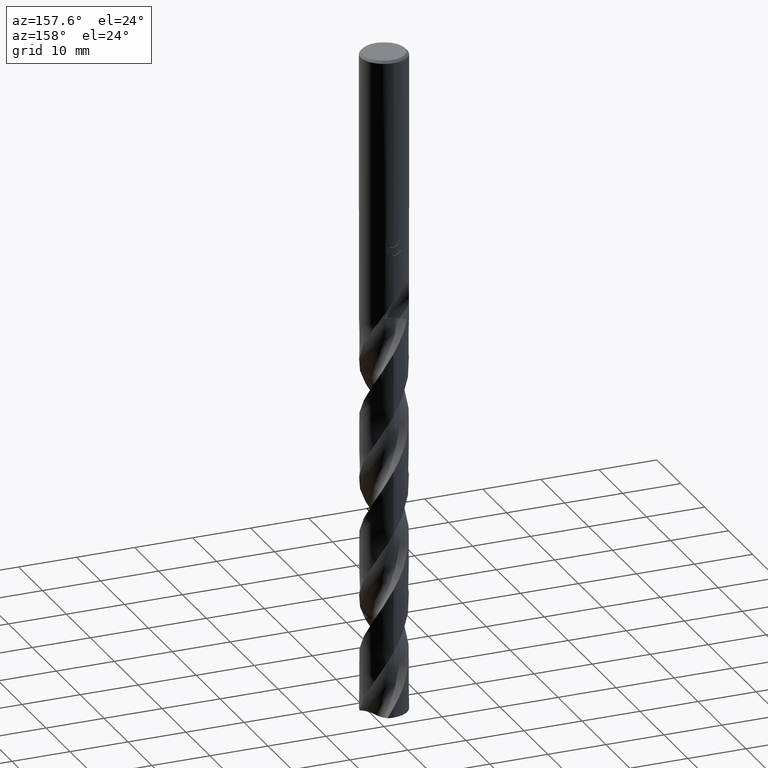
[diagram: clean part render]
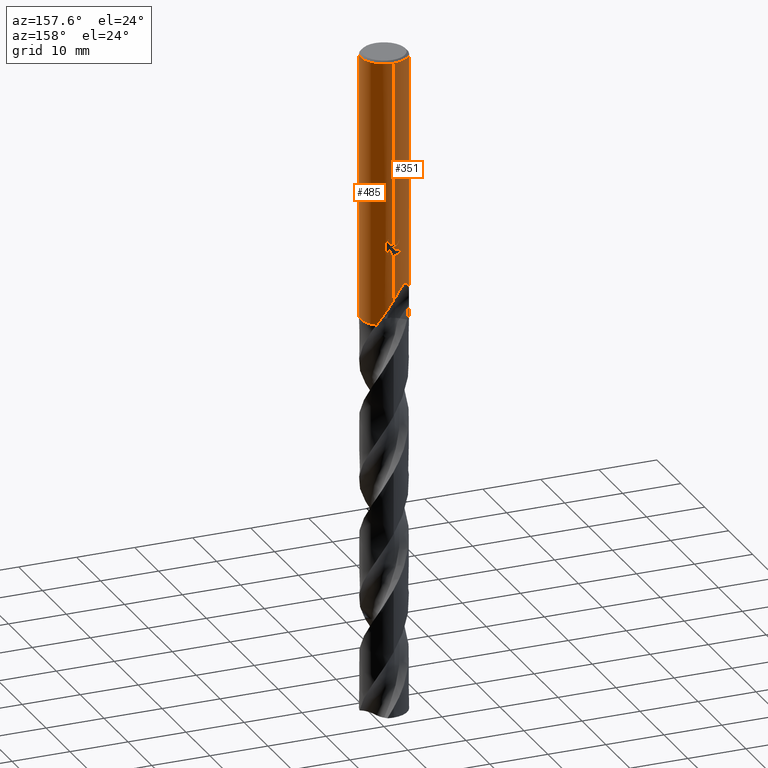
[diagram: same view with one multi-face feature highlighted, each face labeled with its STEP entity id]
A machine part, auxiliary view. The highlighted faces form ONE feature: a constant-radius fillet chain: 2 tangent blend faces with common blend radius 4 mm. The faces share edges in the B-rep.
Their STEP definitions:
[1] entity #485 (Cylinder):
#295=EDGE_CURVE('',#539,#717,#796,.T.);
#339=EDGE_CURVE('',#527,#715,#847,.T.);
#343=EDGE_CURVE('',#661,#387,#851,.T.);
#353=VERTEX_POINT('',#862);
#361=EDGE_CURVE('',#633,#677,#871,.T.);
#383=EDGE_CURVE('',#527,#445,#896,.T.);
#387=VERTEX_POINT('',#901);
#445=VERTEX_POINT('',#962);
#479=VERTEX_POINT('',#999);
#485=ADVANCED_FACE('',(#1005),#1006,.T.);
#507=EDGE_CURVE('',#479,#445,#1031,.T.);
#519=EDGE_CURVE('',#353,#573,#1046,.T.);
#527=VERTEX_POINT('',#1054);
#539=VERTEX_POINT('',#1067);
#551=VERTEX_POINT('',#1079);
#571=VERTEX_POINT('',#1102);
#573=VERTEX_POINT('',#1104);
#603=EDGE_CURVE('',#573,#661,#1137,.T.);
#633=VERTEX_POINT('',#1168);
#647=EDGE_CURVE('',#677,#679,#1183,.T.);
#649=EDGE_CURVE('',#539,#479,#1185,.T.);
#661=VERTEX_POINT('',#1197);
#669=EDGE_CURVE('',#387,#551,#1205,.T.);
#677=VERTEX_POINT('',#1214);
#679=VERTEX_POINT('',#1216);
#699=EDGE_CURVE('',#571,#717,#1238,.T.);
#715=VERTEX_POINT('',#1255);
#717=VERTEX_POINT('',#1257);
#723=EDGE_CURVE('',#571,#551,#1263,.T.);
#727=EDGE_CURVE('',#679,#353,#1268,.T.);
#729=EDGE_CURVE('',#633,#715,#1270,.T.);
#796=LINE('',#1360,#1361);
#847=B_SPLINE_CURVE_WITH_KNOTS('',3,(#2258,#2259,#2260,#2261,#2262,#2263,#2264,#2265,#2266,#2267,#2268,#2269,#2270,#2271,#2272,#2273,#2274,#2275,#2276,#2277,#2278,#2279,#2280,#2281,#2282,#2283,#2284,#2285,#2286,#2287),.UNSPECIFIED.,.F.,.F.,(4,2,2,2,2,2,2,2,2,2,2,2,2,2,4),(0.0,1.95613608925369,3.02588581458986,3.99535416475689,5.12196274412565,6.47500592879971,7.64546164151396,8.17671448888855,8.56504053255071,8.93254009064773,9.39877955356452,10.0809445060621,11.0506956007688,11.6849835291969,12.351566143193),.UNSPECIFIED.);
#851=B_SPLINE_CURVE_WITH_KNOTS('',3,(#2294,#2295,#2296,#2297,#2298,#2299,#2300,#2301,#2302,#2303),.UNSPECIFIED.,.F.,.F.,(4,2,2,2,4),(0.621618550720989,0.932427826081483,1.24323710144198,1.55341597198189,1.8635948425218),.UNSPECIFIED.);
#862=CARTESIAN_POINT('',(0.873560781758956,3.90344611344549,-33.7587351791531));
#871=B_SPLINE_CURVE_WITH_KNOTS('',3,(#3437,#3438,#3439,#3440,#3441,#3442,#3443,#3444,#3445,#3446,#3447,#3448,#3449,#3450,#3451,#3452),.UNSPECIFIED.,.F.,.F.,(4,2,2,2,2,2,2,4),(5.59330412183837,6.21519943861119,6.52611580040833,6.83703216220547,7.14794852400261,7.45886488579976,7.76904377517712,8.07922266455448),.UNSPECIFIED.);
#896=CIRCLE('',#3537,4.0);
#901=CARTESIAN_POINT('',(0.799431726384364,3.91929954390451,-31.000000276873));
#962=CARTESIAN_POINT('',(2.78162917950069,-2.87446327298686,-46.048));
#999=CARTESIAN_POINT('',(3.25456865325919,-2.32546401417495,-43.862679091506));
#1005=FACE_OUTER_BOUND('',#4989,.T.);
#1006=CYLINDRICAL_SURFACE('',#4990,4.0);
#1031=B_SPLINE_CURVE_WITH_KNOTS('',3,(#5371,#5372,#5373,#5374),.UNSPECIFIED.,.F.,.F.,(4,4),(0.0,2.29361829354824),.UNSPECIFIED.);
#1046=B_SPLINE_CURVE_WITH_KNOTS('',3,(#5393,#5394,#5395,#5396,#5397,#5398,#5399,#5400,#5401,#5402),.UNSPECIFIED.,.F.,.F.,(4,2,2,2,4),(8.07922159159579,8.38940045176896,8.69957931194214,9.01038857642139,9.32119784090064),.UNSPECIFIED.);
#1054=CARTESIAN_POINT('',(2.54648688111474,3.08470493958669,-46.048));
#1067=CARTESIAN_POINT('',(1.25035604699869E-012,-4.0,-41.801088623794));
#1079=CARTESIAN_POINT('',(0.0,4.0,-32.0232688117743));
#1102=CARTESIAN_POINT('',(0.0,4.0,-0.399999999999999));
#1104=CARTESIAN_POINT('',(1.33721006514658,3.76986329217263,-33.2901657003257));
#1137=LINE('',#6546,#6547);
#1168=CARTESIAN_POINT('',(-6.37761657961682E-016,4.0,-34.0310253601033));
#1183=ELLIPSE('',#7902,12.1919782934791,4.0);
#1185=B_SPLINE_CURVE_WITH_KNOTS('',3,(#7905,#7906,#7907,#7908,#7909,#7910,#7911,#7912,#7913,#7914,#7915,#7916,#7917,#7918,#7919,#7920,#7921,#7922,#7923,#7924,#7925,#7926,#7927,#7928,#7929,#7930,#7931,#7932,#7933,#7934),.UNSPECIFIED.,.F.,.F.,(4,2,2,2,2,2,2,2,2,2,2,2,2,2,4),(0.0,1.95613608925368,3.02588581458993,3.99535416475708,5.12196274412574,6.47500592879952,7.64546164151366,8.176714488888,8.56504053254987,8.93254009064667,9.39877955356351,10.0809445060602,11.0506956007644,11.6849835291912,12.351566143186),.UNSPECIFIED.);
#1197=CARTESIAN_POINT('',(1.33721006514658,3.76986329217263,-31.5150484364821));
#1205=B_SPLINE_CURVE_WITH_KNOTS('',3,(#7958,#7959,#7960,#7961,#7962,#7963,#7964,#7965,#7966,#7967,#7968,#7969,#7970,#7971,#7972,#7973,#7974,#7975,#7976,#7977,#7978,#7979,#7980,#7981,#7982,#7983,#7984),.UNSPECIFIED.,.F.,.F.,(4,2,3,2,2,2,2,2,2,2,2,2,4),(-0.543018145553855,-0.271509072776928,0.0,0.271509072776927,0.543018145553855,0.815414280910791,1.08781041626773,1.35870467547365,1.62959893467958,1.90093601549038,2.17227309630118,2.44361017711198,2.71494725792278),.UNSPECIFIED.);
#1214=CARTESIAN_POINT('',(0.29010312703583,3.98946615171554,-33.9998328990228));
#1216=CARTESIAN_POINT('',(0.873560781758957,3.90344611344549,-32.3198931596091));
#1238=CIRCLE('',#8236,4.0);
#1255=CARTESIAN_POINT('',(-1.25146627002332E-012,4.0,-41.801088623794));
#1257=CARTESIAN_POINT('',(4.89842541528951E-016,-4.0,-0.399999999999999));
#1263=LINE('',#8417,#8418);
#1268=LINE('',#8424,#8425);
#1270=LINE('',#8428,#8429);
#1360=CARTESIAN_POINT('',(4.89842541528951E-016,-4.0,-41.024));
#1361=VECTOR('',#8528,1.0);
#2258=CARTESIAN_POINT('',(2.54648688111474,3.08470493958669,-46.048));
#2259=CARTESIAN_POINT('',(2.28281645920088,3.30237025393329,-45.4927857395039));
#2260=CARTESIAN_POINT('',(1.97985239651986,3.49575832618078,-44.9749642225094));
#2261=CARTESIAN_POINT('',(1.45157540596957,3.73293991469467,-44.1096901914372));
#2262=CARTESIAN_POINT('',(1.26129604391076,3.80123087746363,-43.8049433770779));
#2263=CARTESIAN_POINT('',(0.892859018252274,3.90331125328388,-43.2148977308929));
#2264=CARTESIAN_POINT('',(0.716335170673316,3.93937612960234,-42.9323313969092));
#2265=CARTESIAN_POINT('',(0.334181193209896,3.99140260779415,-42.3232548140646));
#2266=CARTESIAN_POINT('',(0.125345867139651,4.00358586258119,-41.9919590551952));
#2267=CARTESIAN_POINT('',(-0.338384701678533,3.99368920468587,-41.2833418629955));
#2268=CARTESIAN_POINT('',(-0.613357466585129,3.96342831619496,-40.8801322927151));
#2269=CARTESIAN_POINT('',(-1.14315861989626,3.84145468088286,-40.2160644859474));
#2270=CARTESIAN_POINT('',(-1.4358859681651,3.74872053547881,-39.8924958593019));
#2271=CARTESIAN_POINT('',(-1.87915579012694,3.53445862526113,-39.5891995517051));
#2272=CARTESIAN_POINT('',(-2.02603676390615,3.45348540189945,-39.5141706190028));
#2273=CARTESIAN_POINT('',(-2.28341462069976,3.28675944107702,-39.4565534324019));
#2274=CARTESIAN_POINT('',(-2.3889837140341,3.21082853967922,-39.4554953914822));
#2275=CARTESIAN_POINT('',(-2.58561510139602,3.05442600848283,-39.5059954411233));
#2276=CARTESIAN_POINT('',(-2.67161316918944,2.97888545307594,-39.5533303332314));
#2277=CARTESIAN_POINT('',(-2.84662346943095,2.81334023023083,-39.7014236834757));
#2278=CARTESIAN_POINT('',(-2.92759166631335,2.72754926645379,-39.8107624692751));
#2279=CARTESIAN_POINT('',(-3.09344098851927,2.54021864622151,-40.1101626476167));
#2280=CARTESIAN_POINT('',(-3.17271116310003,2.43820555709481,-40.3322303969013));
#2281=CARTESIAN_POINT('',(-3.32176162003841,2.23338604071818,-40.9535294005294));
#2282=CARTESIAN_POINT('',(-3.37563711699285,2.1461583877518,-41.3960036678236));
#2283=CARTESIAN_POINT('',(-3.40225827510076,2.10357623432268,-42.2147538460397));
#2284=CARTESIAN_POINT('',(-3.39597384153838,2.11399626666505,-42.540718413317));
#2285=CARTESIAN_POINT('',(-3.35166691139064,2.1836017208182,-43.2022589281718));
#2286=CARTESIAN_POINT('',(-3.3121193505882,2.24491978972835,-43.5353451667984));
#2287=CARTESIAN_POINT('',(-3.25456865325918,2.32546401417496,-43.862679091506));
#2294=CARTESIAN_POINT('',(1.47492143493287,3.71814560779639,-31.7759604553563));
#2295=CARTESIAN_POINT('',(1.43317985453682,3.73470372211652,-31.6758249567768));
#2296=CARTESIAN_POINT('',(1.38139934199221,3.7544274523428,-31.5801212011595));
#2297=CARTESIAN_POINT('',(1.26216864159784,3.79617175011376,-31.4033868968692));
#2298=CARTESIAN_POINT('',(1.1947060468711,3.8181497487877,-31.3223546663791));
#2299=CARTESIAN_POINT('',(1.0513319169546,3.86008660392055,-31.1790629248092));
#2300=CARTESIAN_POINT('',(0.970367433401024,3.88157055479408,-31.1117010969221));
#2301=CARTESIAN_POINT('',(0.793686081906958,3.92151314302242,-30.9925943353462));
#2302=CARTESIAN_POINT('',(0.697967348067752,3.93993643158254,-30.9408403180509));
#2303=CARTESIAN_POINT('',(0.597825544213158,3.95507327601983,-30.8991318677171));
#3437=CARTESIAN_POINT('',(-1.53169074080201,3.69512157777541,-33.0291469804961));
#3438=CARTESIAN_POINT('',(-1.44828662161398,3.72969396308271,-33.2292685117474));
#3439=CARTESIAN_POINT('',(-1.3235119204923,3.77766697431007,-33.4106519059977));
#3440=CARTESIAN_POINT('',(-1.10876972720289,3.84398770228913,-33.6255223555534));
#3441=CARTESIAN_POINT('',(-1.02784628500841,3.86675406900514,-33.6929304922165));
#3442=CARTESIAN_POINT('',(-0.851215741256186,3.9094356085587,-33.8121513963803));
#3443=CARTESIAN_POINT('',(-0.755506440008018,3.92931563110609,-33.8639734861066));
#3444=CARTESIAN_POINT('',(-0.55516132520436,3.96258844897707,-33.9475385932463));
#3445=CARTESIAN_POINT('',(-0.450345578096092,3.97598591776774,-33.9793474763458));
#3446=CARTESIAN_POINT('',(-0.238765831475676,3.99427916347003,-34.0212208804589));
#3447=CARTESIAN_POINT('',(-0.131998351317953,3.99916459194608,-34.0312723335086));
#3448=CARTESIAN_POINT('',(0.0750281946656646,4.00063255933723,-34.0312723335086));
#3449=CARTESIAN_POINT('',(0.181611397509719,3.99727906083033,-34.0212676362976));
#3450=CARTESIAN_POINT('',(0.392937729655654,3.98206259750675,-33.9795209106323));
#3451=CARTESIAN_POINT('',(0.497684032548134,3.97021008398904,-33.9477911393989));
#3452=CARTESIAN_POINT('',(0.597825841435798,3.9550732310934,-33.9060826866649));
#3537=AXIS2_PLACEMENT_3D('',#8661,#8662,#8663);
#4989=EDGE_LOOP('',(#8743,#8744,#8745,#8746,#8747,#8748,#8749,#8750,#8751,#8752,#8753,#8754,#8755,#8756,#8757));
#4990=AXIS2_PLACEMENT_3D('',#8758,#8759,#8760);
#5371=CARTESIAN_POINT('',(3.2545686533118,-2.32546401410131,-43.862679091535));
#5372=CARTESIAN_POINT('',(3.12590708568403,-2.50553040186225,-44.5944870163674));
#5373=CARTESIAN_POINT('',(2.97089994542835,-2.69130522387261,-45.3306158058147));
#5374=CARTESIAN_POINT('',(2.78162917950069,-2.87446327298686,-46.048));
#5393=CARTESIAN_POINT('',(0.597825566619951,3.95507327263295,-33.9060822529338));
#5394=CARTESIAN_POINT('',(0.69796736707036,3.93993642812991,-33.8643738039892));
#5395=CARTESIAN_POINT('',(0.793686097648071,3.92151313976681,-33.8126197884223));
#5396=CARTESIAN_POINT('',(0.970367443122637,3.8815705522933,-33.6935130308195));
#5397=CARTESIAN_POINT('',(1.05133192391794,3.86008660197544,-33.6261512051772));
#5398=CARTESIAN_POINT('',(1.19470604884202,3.81814974811935,-33.4828594684698));
#5399=CARTESIAN_POINT('',(1.26216864117972,3.79617175021539,-33.401827240791));
#5400=CARTESIAN_POINT('',(1.38139933735972,3.75442745400946,-33.2250929426288));
#5401=CARTESIAN_POINT('',(1.43317984807825,3.73470372457547,-33.1293891903286));
#5402=CARTESIAN_POINT('',(1.47492142700079,3.7181456109429,-33.0292536952238));
#6546=CARTESIAN_POINT('',(1.33721006514658,3.76986329217263,-32.4026070684039));
#6547=VECTOR('',#8946,1.0);
#7902=AXIS2_PLACEMENT_3D('',#8979,#8980,#8981);
#7905=CARTESIAN_POINT('',(-2.54648688111474,-3.08470493958669,-46.048));
#7906=CARTESIAN_POINT('',(-2.28281645920088,-3.30237025393329,-45.4927857395039));
#7907=CARTESIAN_POINT('',(-1.97985239651987,-3.49575832618078,-44.9749642225095));
#7908=CARTESIAN_POINT('',(-1.45157540596955,-3.73293991469468,-44.1096901914371));
#7909=CARTESIAN_POINT('',(-1.26129604391073,-3.80123087746364,-43.8049433770778));
#7910=CARTESIAN_POINT('',(-0.892859018252298,-3.90331125328387,-43.2148977308929));
#7911=CARTESIAN_POINT('',(-0.716335170673364,-3.93937612960234,-42.9323313969093));
#7912=CARTESIAN_POINT('',(-0.33418119320989,-3.99140260779416,-42.3232548140646));
#7913=CARTESIAN_POINT('',(-0.125345867139649,-4.00358586258119,-41.9919590551952));
#7914=CARTESIAN_POINT('',(0.33838470167849,-3.99368920468587,-41.2833418629956));
#7915=CARTESIAN_POINT('',(0.613357466585106,-3.96342831619496,-40.8801322927151));
#7916=CARTESIAN_POINT('',(1.14315861989629,-3.84145468088285,-40.2160644859473));
#7917=CARTESIAN_POINT('',(1.43588596816511,-3.74872053547881,-39.8924958593019));
#7918=CARTESIAN_POINT('',(1.87915579012689,-3.53445862526116,-39.5891995517051));
#7919=CARTESIAN_POINT('',(2.02603676390613,-3.45348540189946,-39.5141706190028));
#7920=CARTESIAN_POINT('',(2.28341462069973,-3.28675944107704,-39.4565534324019));
#7921=CARTESIAN_POINT('',(2.38898371403409,-3.21082853967923,-39.4554953914822));
#7922=CARTESIAN_POINT('',(2.58561510139604,-3.05442600848281,-39.5059954411233));
#7923=CARTESIAN_POINT('',(2.67161316918949,-2.9788854530759,-39.5533303332314));
#7924=CARTESIAN_POINT('',(2.84662346943095,-2.81334023023083,-39.7014236834757));
#7925=CARTESIAN_POINT('',(2.92759166631335,-2.72754926645379,-39.8107624692751));
#7926=CARTESIAN_POINT('',(3.09344098851913,-2.54021864622167,-40.1101626476164));
#7927=CARTESIAN_POINT('',(3.17271116309993,-2.43820555709494,-40.3322303969009));
#7928=CARTESIAN_POINT('',(3.32176162003845,-2.23338604071812,-40.9535294005296));
#7929=CARTESIAN_POINT('',(3.37563711699286,-2.14615838775179,-41.3960036678238));
#7930=CARTESIAN_POINT('',(3.40225827510076,-2.10357623432268,-42.2147538460397));
#7931=CARTESIAN_POINT('',(3.39597384153838,-2.11399626666505,-42.540718413317));
#7932=CARTESIAN_POINT('',(3.35166691139065,-2.1836017208182,-43.2022589281718));
#7933=CARTESIAN_POINT('',(3.3121193505882,-2.24491978972835,-43.5353451667984));
#7934=CARTESIAN_POINT('',(3.25456865325918,-2.32546401417496,-43.862679091506));
#7958=CARTESIAN_POINT('',(0.665279195004375,3.9442874632428,-30.8137529884524));
#7959=CARTESIAN_POINT('',(0.72877088492158,3.9335783806135,-30.8773526603125));
#7960=CARTESIAN_POINT('',(0.783944488018489,3.92260552826083,-30.957920893425));
#7961=CARTESIAN_POINT('',(0.857267073993339,3.90723639918054,-31.134802544027));
#7962=CARTESIAN_POINT('',(0.875400981188567,3.90303383563787,-31.2311389883278));
#7963=CARTESIAN_POINT('',(0.875400981188567,3.90303383563787,-31.3216420125868));
#7964=CARTESIAN_POINT('',(0.875400981188567,3.90303383563787,-31.4121450368458));
#7965=CARTESIAN_POINT('',(0.857267073993339,3.90723639918054,-31.5084814811466));
#7966=CARTESIAN_POINT('',(0.783944488018488,3.92260552826083,-31.6853631317485));
#7967=CARTESIAN_POINT('',(0.728770884921581,3.9335783806135,-31.765931364861));
#7968=CARTESIAN_POINT('',(0.601580067811904,3.95503153411898,-31.8933384986505));
#7969=CARTESIAN_POINT('',(0.520902117238449,3.96693827151805,-31.9487071231089));
#7970=CARTESIAN_POINT('',(0.343752086871948,3.98619778335453,-32.0223037477669));
#7971=CARTESIAN_POINT('',(0.247255556938652,3.99338316413851,-32.0405166027747));
#7972=CARTESIAN_POINT('',(0.0662974670001867,4.00046977119903,-32.0405166027747));
#7973=CARTESIAN_POINT('',(-0.0299674229107091,4.00086780861984,-32.0224830783564));
#7974=CARTESIAN_POINT('',(-0.206991592502204,3.99562207288533,-31.9491870835923));
#7975=CARTESIAN_POINT('',(-0.287758268875903,3.99014940483369,-31.8939303320089));
#7976=CARTESIAN_POINT('',(-0.415384305359873,3.97889009382894,-31.7664425414649));
#7977=CARTESIAN_POINT('',(-0.470753835570468,3.9723749730993,-31.6856442592887));
#7978=CARTESIAN_POINT('',(-0.544239101864661,3.96297563900076,-31.5084730190186));
#7979=CARTESIAN_POINT('',(-0.562348199187247,3.96027328638705,-31.4120877061904));
#7980=CARTESIAN_POINT('',(-0.562348199187247,3.96027328638705,-31.2311963189832));
#7981=CARTESIAN_POINT('',(-0.544239101864661,3.96297563900076,-31.134811006155));
#7982=CARTESIAN_POINT('',(-0.470753835570468,3.9723749730993,-30.9576397658849));
#7983=CARTESIAN_POINT('',(-0.415384305359873,3.97889009382894,-30.8768414837086));
#7984=CARTESIAN_POINT('',(-0.351519173230209,3.98452434687649,-30.8130455309993));
#8236=AXIS2_PLACEMENT_3D('',#9019,#9020,#9021);
#8417=CARTESIAN_POINT('',(-4.89842541528951E-016,4.0,-41.024));
#8418=VECTOR('',#9033,1.0);
#8424=CARTESIAN_POINT('',(0.873560781758957,3.90344611344549,-33.0393141693811));
#8425=VECTOR('',#9042,1.0);
#8428=CARTESIAN_POINT('',(-4.89842541528951E-016,4.0,-41.024));
#8429=VECTOR('',#9043,1.0);
#8528=DIRECTION('',(-0.0,-0.0,1.0));
#8661=CARTESIAN_POINT('',(0.0,0.0,-46.048));
#8662=DIRECTION('',(0.0,0.0,-1.0));
#8663=DIRECTION('',(0.0,1.0,0.0));
#8743=ORIENTED_EDGE('',*,*,#723,.F.);
#8744=ORIENTED_EDGE('',*,*,#699,.T.);
#8745=ORIENTED_EDGE('',*,*,#295,.F.);
#8746=ORIENTED_EDGE('',*,*,#649,.T.);
#8747=ORIENTED_EDGE('',*,*,#507,.T.);
#8748=ORIENTED_EDGE('',*,*,#383,.F.);
#8749=ORIENTED_EDGE('',*,*,#339,.T.);
#8750=ORIENTED_EDGE('',*,*,#729,.F.);
#8751=ORIENTED_EDGE('',*,*,#361,.T.);
#8752=ORIENTED_EDGE('',*,*,#647,.T.);
#8753=ORIENTED_EDGE('',*,*,#727,.T.);
#8754=ORIENTED_EDGE('',*,*,#519,.T.);
#8755=ORIENTED_EDGE('',*,*,#603,.T.);
#8756=ORIENTED_EDGE('',*,*,#343,.T.);
#8757=ORIENTED_EDGE('',*,*,#669,.T.);
#8758=CARTESIAN_POINT('',(0.0,0.0,-41.024));
#8759=DIRECTION('',(-0.0,-0.0,1.0));
#8760=DIRECTION('',(0.0,1.0,0.0));
#8946=DIRECTION('',(-0.0,-0.0,1.0));
#8979=CARTESIAN_POINT('',(0.0,0.0,-34.8351219173269));
#8980=DIRECTION('',(0.944648353914092,0.0,-0.328084573619969));
#8981=DIRECTION('',(0.328084573619968,-0.0,0.944648353914092));
#9019=CARTESIAN_POINT('',(0.0,0.0,-0.399999999999999));
#9020=DIRECTION('',(0.0,0.0,-1.0));
#9021=DIRECTION('',(0.0,1.0,0.0));
#9033=DIRECTION('',(0.0,0.0,-1.0));
#9042=DIRECTION('',(0.0,0.0,-1.0));
#9043=DIRECTION('',(0.0,0.0,-1.0));
[2] entity #351 (Cylinder):
#273=VERTEX_POINT('',#772);
#293=EDGE_CURVE('',#655,#427,#794,.T.);
#295=EDGE_CURVE('',#539,#717,#796,.T.);
#303=EDGE_CURVE('',#483,#321,#805,.T.);
#321=VERTEX_POINT('',#826);
#345=EDGE_CURVE('',#321,#355,#853,.T.);
#351=ADVANCED_FACE('',(#859),#860,.T.);
#355=VERTEX_POINT('',#864);
#359=VERTEX_POINT('',#869);
#367=EDGE_CURVE('',#715,#673,#878,.T.);
#401=EDGE_CURVE('',#359,#701,#916,.T.);
#425=EDGE_CURVE('',#701,#273,#941,.T.);
#427=VERTEX_POINT('',#943);
#429=EDGE_CURVE('',#355,#633,#945,.T.);
#465=EDGE_CURVE('',#673,#427,#983,.T.);
#483=VERTEX_POINT('',#1003);
#539=VERTEX_POINT('',#1067);
#551=VERTEX_POINT('',#1079);
#571=VERTEX_POINT('',#1102);
#633=VERTEX_POINT('',#1168);
#655=VERTEX_POINT('',#1191);
#673=VERTEX_POINT('',#1209);
#685=EDGE_CURVE('',#551,#359,#1223,.T.);
#695=EDGE_CURVE('',#717,#571,#1234,.T.);
#701=VERTEX_POINT('',#1240);
#715=VERTEX_POINT('',#1255);
#717=VERTEX_POINT('',#1257);
#723=EDGE_CURVE('',#571,#551,#1263,.T.);
#729=EDGE_CURVE('',#633,#715,#1270,.T.);
#743=EDGE_CURVE('',#273,#483,#1285,.T.);
#745=EDGE_CURVE('',#655,#539,#1287,.T.);
#772=CARTESIAN_POINT('',(-1.0350734039088,3.86375763325298,-31.3171221986971));
#794=CIRCLE('',#1357,4.0);
#796=LINE('',#1360,#1361);
#805=LINE('',#1537,#1538);
#826=CARTESIAN_POINT('',(-4.89842541528951E-016,4.0,-32.7128911336578));
#853=ELLIPSE('',#2306,4.45971372817144,4.0);
#859=FACE_OUTER_BOUND('',#2314,.T.);
#860=CYLINDRICAL_SURFACE('',#2315,4.0);
#864=CARTESIAN_POINT('',(-1.337052752443,3.76991908894403,-33.3720803908795));
#869=CARTESIAN_POINT('',(-0.486378944383045,3.97031932248035,-31.6432837483006));
#878=B_SPLINE_CURVE_WITH_KNOTS('',3,(#3468,#3469,#3470,#3471,#3472,#3473,#3474,#3475,#3476,#3477,#3478,#3479,#3480,#3481,#3482,#3483,#3484,#3485,#3486,#3487,#3488,#3489,#3490,#3491,#3492,#3493,#3494,#3495,#3496,#3497),.UNSPECIFIED.,.F.,.F.,(4,2,2,2,2,2,2,2,2,2,2,2,2,2,4),(0.0,1.95613608925369,3.02588581458986,3.99535416475689,5.12196274412565,6.47500592879971,7.64546164151396,8.17671448888855,8.56504053255071,8.93254009064773,9.39877955356452,10.0809445060621,11.0506956007688,11.6849835291969,12.351566143193),.UNSPECIFIED.);
#916=B_SPLINE_CURVE_WITH_KNOTS('',3,(#3732,#3733,#3734,#3735,#3736,#3737,#3738,#3739,#3740,#3741,#3742,#3743,#3744,#3745,#3746,#3747,#3748,#3749,#3750,#3751,#3752,#3753,#3754,#3755,#3756,#3757,#3758),.UNSPECIFIED.,.F.,.F.,(4,2,3,2,2,2,2,2,2,2,2,2,4),(-0.543018145553855,-0.271509072776928,0.0,0.271509072776927,0.543018145553855,0.815414280910791,1.08781041626773,1.35870467547365,1.62959893467958,1.90093601549038,2.17227309630118,2.44361017711198,2.71494725792278),.UNSPECIFIED.);
#941=CIRCLE('',#3943,4.0);
#943=CARTESIAN_POINT('',(-2.78162917950069,2.87446327298686,-46.048));
#945=B_SPLINE_CURVE_WITH_KNOTS('',3,(#3948,#3949,#3950,#3951,#3952,#3953,#3954,#3955,#3956,#3957,#3958,#3959,#3960,#3961,#3962,#3963),.UNSPECIFIED.,.F.,.F.,(4,2,2,2,2,2,2,4),(5.59330412183837,6.21519943861119,6.52611580040833,6.83703216220547,7.14794852400261,7.45886488579976,7.76904377517712,8.07922266455448),.UNSPECIFIED.);
#983=B_SPLINE_CURVE_WITH_KNOTS('',3,(#4782,#4783,#4784,#4785),.UNSPECIFIED.,.F.,.F.,(4,4),(0.0,2.2936182935482),.UNSPECIFIED.);
#1003=CARTESIAN_POINT('',(1.76789376344218E-016,4.0,-32.5000801551881));
#1067=CARTESIAN_POINT('',(1.25035604699869E-012,-4.0,-41.801088623794));
#1079=CARTESIAN_POINT('',(0.0,4.0,-32.0232688117743));
#1102=CARTESIAN_POINT('',(0.0,4.0,-0.399999999999999));
#1168=CARTESIAN_POINT('',(-6.37761657961682E-016,4.0,-34.0310253601033));
#1191=CARTESIAN_POINT('',(-2.54648688111474,-3.08470493958669,-46.048));
#1209=CARTESIAN_POINT('',(-3.25456865325919,2.32546401417495,-43.862679091506));
#1223=B_SPLINE_CURVE_WITH_KNOTS('',3,(#8032,#8033,#8034,#8035,#8036,#8037,#8038,#8039,#8040,#8041,#8042,#8043,#8044,#8045,#8046,#8047,#8048,#8049,#8050,#8051,#8052,#8053,#8054,#8055,#8056,#8057,#8058),.UNSPECIFIED.,.F.,.F.,(4,2,3,2,2,2,2,2,2,2,2,2,4),(-0.543018145553855,-0.271509072776928,0.0,0.271509072776927,0.543018145553855,0.815414280910791,1.08781041626773,1.35870467547365,1.62959893467958,1.90093601549038,2.17227309630118,2.44361017711198,2.71494725792278),.UNSPECIFIED.);
#1234=CIRCLE('',#8073,4.0);
#1240=CARTESIAN_POINT('',(-0.562333990228013,3.9602753039952,-31.3171221986971));
#1255=CARTESIAN_POINT('',(-1.25146627002332E-012,4.0,-41.801088623794));
#1257=CARTESIAN_POINT('',(4.89842541528951E-016,-4.0,-0.399999999999999));
#1263=LINE('',#8417,#8418);
#1270=LINE('',#8428,#8429);
#1285=B_SPLINE_CURVE_WITH_KNOTS('',3,(#8448,#8449,#8450,#8451,#8452,#8453,#8454,#8455,#8456,#8457,#8458,#8459,#8460,#8461),.UNSPECIFIED.,.F.,.F.,(4,2,2,2,2,2,4),(3.1414972576051,3.58983629155794,4.03817532551078,4.48651435946362,4.93338740522822,5.38026045099282,5.83106711565938),.UNSPECIFIED.);
#1287=B_SPLINE_CURVE_WITH_KNOTS('',3,(#8464,#8465,#8466,#8467,#8468,#8469,#8470,#8471,#8472,#8473,#8474,#8475,#8476,#8477,#8478,#8479,#8480,#8481,#8482,#8483,#8484,#8485,#8486,#8487,#8488,#8489,#8490,#8491,#8492,#8493),.UNSPECIFIED.,.F.,.F.,(4,2,2,2,2,2,2,2,2,2,2,2,2,2,4),(0.0,1.95613608925368,3.02588581458993,3.99535416475708,5.12196274412574,6.47500592879952,7.64546164151366,8.176714488888,8.56504053254987,8.93254009064667,9.39877955356351,10.0809445060602,11.0506956007644,11.6849835291912,12.351566143186),.UNSPECIFIED.);
#1357=AXIS2_PLACEMENT_3D('',#8525,#8526,#8527);
#1360=CARTESIAN_POINT('',(4.89842541528951E-016,-4.0,-41.024));
#1361=VECTOR('',#8528,1.0);
#1537=CARTESIAN_POINT('',(-4.89842541528951E-016,4.0,-41.024));
#1538=VECTOR('',#8539,1.0);
#2306=AXIS2_PLACEMENT_3D('',#8596,#8597,#8598);
#2314=EDGE_LOOP('',(#8606,#8607,#8608,#8609,#8610,#8611,#8612,#8613,#8614,#8615,#8616,#8617,#8618,#8619,#8620));
#2315=AXIS2_PLACEMENT_3D('',#8621,#8622,#8623);
#3468=CARTESIAN_POINT('',(2.54648688111474,3.08470493958669,-46.048));
#3469=CARTESIAN_POINT('',(2.28281645920088,3.30237025393329,-45.4927857395039));
#3470=CARTESIAN_POINT('',(1.97985239651986,3.49575832618078,-44.9749642225094));
#3471=CARTESIAN_POINT('',(1.45157540596957,3.73293991469467,-44.1096901914372));
#3472=CARTESIAN_POINT('',(1.26129604391076,3.80123087746363,-43.8049433770779));
#3473=CARTESIAN_POINT('',(0.892859018252274,3.90331125328388,-43.2148977308929));
#3474=CARTESIAN_POINT('',(0.716335170673316,3.93937612960234,-42.9323313969092));
#3475=CARTESIAN_POINT('',(0.334181193209896,3.99140260779415,-42.3232548140646));
#3476=CARTESIAN_POINT('',(0.125345867139651,4.00358586258119,-41.9919590551952));
#3477=CARTESIAN_POINT('',(-0.338384701678533,3.99368920468587,-41.2833418629955));
#3478=CARTESIAN_POINT('',(-0.613357466585129,3.96342831619496,-40.8801322927151));
#3479=CARTESIAN_POINT('',(-1.14315861989626,3.84145468088286,-40.2160644859474));
#3480=CARTESIAN_POINT('',(-1.4358859681651,3.74872053547881,-39.8924958593019));
#3481=CARTESIAN_POINT('',(-1.87915579012694,3.53445862526113,-39.5891995517051));
#3482=CARTESIAN_POINT('',(-2.02603676390615,3.45348540189945,-39.5141706190028));
#3483=CARTESIAN_POINT('',(-2.28341462069976,3.28675944107702,-39.4565534324019));
#3484=CARTESIAN_POINT('',(-2.3889837140341,3.21082853967922,-39.4554953914822));
#3485=CARTESIAN_POINT('',(-2.58561510139602,3.05442600848283,-39.5059954411233));
#3486=CARTESIAN_POINT('',(-2.67161316918944,2.97888545307594,-39.5533303332314));
#3487=CARTESIAN_POINT('',(-2.84662346943095,2.81334023023083,-39.7014236834757));
#3488=CARTESIAN_POINT('',(-2.92759166631335,2.72754926645379,-39.8107624692751));
#3489=CARTESIAN_POINT('',(-3.09344098851927,2.54021864622151,-40.1101626476167));
#3490=CARTESIAN_POINT('',(-3.17271116310003,2.43820555709481,-40.3322303969013));
#3491=CARTESIAN_POINT('',(-3.32176162003841,2.23338604071818,-40.9535294005294));
#3492=CARTESIAN_POINT('',(-3.37563711699285,2.1461583877518,-41.3960036678236));
#3493=CARTESIAN_POINT('',(-3.40225827510076,2.10357623432268,-42.2147538460397));
#3494=CARTESIAN_POINT('',(-3.39597384153838,2.11399626666505,-42.540718413317));
#3495=CARTESIAN_POINT('',(-3.35166691139064,2.1836017208182,-43.2022589281718));
#3496=CARTESIAN_POINT('',(-3.3121193505882,2.24491978972835,-43.5353451667984));
#3497=CARTESIAN_POINT('',(-3.25456865325918,2.32546401417496,-43.862679091506));
#3732=CARTESIAN_POINT('',(0.665279195004375,3.9442874632428,-30.8137529884524));
#3733=CARTESIAN_POINT('',(0.72877088492158,3.9335783806135,-30.8773526603125));
#3734=CARTESIAN_POINT('',(0.783944488018489,3.92260552826083,-30.957920893425));
#3735=CARTESIAN_POINT('',(0.857267073993339,3.90723639918054,-31.134802544027));
#3736=CARTESIAN_POINT('',(0.875400981188567,3.90303383563787,-31.2311389883278));
#3737=CARTESIAN_POINT('',(0.875400981188567,3.90303383563787,-31.3216420125868));
#3738=CARTESIAN_POINT('',(0.875400981188567,3.90303383563787,-31.4121450368458));
#3739=CARTESIAN_POINT('',(0.857267073993339,3.90723639918054,-31.5084814811466));
#3740=CARTESIAN_POINT('',(0.783944488018488,3.92260552826083,-31.6853631317485));
#3741=CARTESIAN_POINT('',(0.728770884921581,3.9335783806135,-31.765931364861));
#3742=CARTESIAN_POINT('',(0.601580067811904,3.95503153411898,-31.8933384986505));
#3743=CARTESIAN_POINT('',(0.520902117238449,3.96693827151805,-31.9487071231089));
#3744=CARTESIAN_POINT('',(0.343752086871948,3.98619778335453,-32.0223037477669));
#3745=CARTESIAN_POINT('',(0.247255556938652,3.99338316413851,-32.0405166027747));
#3746=CARTESIAN_POINT('',(0.0662974670001867,4.00046977119903,-32.0405166027747));
#3747=CARTESIAN_POINT('',(-0.0299674229107091,4.00086780861984,-32.0224830783564));
#3748=CARTESIAN_POINT('',(-0.206991592502204,3.99562207288533,-31.9491870835923));
#3749=CARTESIAN_POINT('',(-0.287758268875903,3.99014940483369,-31.8939303320089));
#3750=CARTESIAN_POINT('',(-0.415384305359873,3.97889009382894,-31.7664425414649));
#3751=CARTESIAN_POINT('',(-0.470753835570468,3.9723749730993,-31.6856442592887));
#3752=CARTESIAN_POINT('',(-0.544239101864661,3.96297563900076,-31.5084730190186));
#3753=CARTESIAN_POINT('',(-0.562348199187247,3.96027328638705,-31.4120877061904));
#3754=CARTESIAN_POINT('',(-0.562348199187247,3.96027328638705,-31.2311963189832));
#3755=CARTESIAN_POINT('',(-0.544239101864661,3.96297563900076,-31.134811006155));
#3756=CARTESIAN_POINT('',(-0.470753835570468,3.9723749730993,-30.9576397658849));
#3757=CARTESIAN_POINT('',(-0.415384305359873,3.97889009382894,-30.8768414837086));
#3758=CARTESIAN_POINT('',(-0.351519173230209,3.98452434687649,-30.8130455309993));
#3943=AXIS2_PLACEMENT_3D('',#8700,#8701,#8702);
#3948=CARTESIAN_POINT('',(-1.53169074080201,3.69512157777541,-33.0291469804961));
#3949=CARTESIAN_POINT('',(-1.44828662161398,3.72969396308271,-33.2292685117474));
#3950=CARTESIAN_POINT('',(-1.3235119204923,3.77766697431007,-33.4106519059977));
#3951=CARTESIAN_POINT('',(-1.10876972720289,3.84398770228913,-33.6255223555534));
#3952=CARTESIAN_POINT('',(-1.02784628500841,3.86675406900514,-33.6929304922165));
#3953=CARTESIAN_POINT('',(-0.851215741256186,3.9094356085587,-33.8121513963803));
#3954=CARTESIAN_POINT('',(-0.755506440008018,3.92931563110609,-33.8639734861066));
#3955=CARTESIAN_POINT('',(-0.55516132520436,3.96258844897707,-33.9475385932463));
#3956=CARTESIAN_POINT('',(-0.450345578096092,3.97598591776774,-33.9793474763458));
#3957=CARTESIAN_POINT('',(-0.238765831475676,3.99427916347003,-34.0212208804589));
#3958=CARTESIAN_POINT('',(-0.131998351317953,3.99916459194608,-34.0312723335086));
#3959=CARTESIAN_POINT('',(0.0750281946656646,4.00063255933723,-34.0312723335086));
#3960=CARTESIAN_POINT('',(0.181611397509719,3.99727906083033,-34.0212676362976));
#3961=CARTESIAN_POINT('',(0.392937729655654,3.98206259750675,-33.9795209106323));
#3962=CARTESIAN_POINT('',(0.497684032548134,3.97021008398904,-33.9477911393989));
#3963=CARTESIAN_POINT('',(0.597825841435798,3.9550732310934,-33.9060826866649));
#4782=CARTESIAN_POINT('',(-3.2545686533118,2.32546401410131,-43.862679091535));
#4783=CARTESIAN_POINT('',(-3.12590708568403,2.50553040186225,-44.5944870163674));
#4784=CARTESIAN_POINT('',(-2.97089994542835,2.69130522387261,-45.3306158058147));
#4785=CARTESIAN_POINT('',(-2.78162917950069,2.87446327298686,-46.048));
#8032=CARTESIAN_POINT('',(0.665279195004375,3.9442874632428,-30.8137529884524));
#8033=CARTESIAN_POINT('',(0.72877088492158,3.9335783806135,-30.8773526603125));
#8034=CARTESIAN_POINT('',(0.783944488018489,3.92260552826083,-30.957920893425));
#8035=CARTESIAN_POINT('',(0.857267073993339,3.90723639918054,-31.134802544027));
#8036=CARTESIAN_POINT('',(0.875400981188567,3.90303383563787,-31.2311389883278));
#8037=CARTESIAN_POINT('',(0.875400981188567,3.90303383563787,-31.3216420125868));
#8038=CARTESIAN_POINT('',(0.875400981188567,3.90303383563787,-31.4121450368458));
#8039=CARTESIAN_POINT('',(0.857267073993339,3.90723639918054,-31.5084814811466));
#8040=CARTESIAN_POINT('',(0.783944488018488,3.92260552826083,-31.6853631317485));
#8041=CARTESIAN_POINT('',(0.728770884921581,3.9335783806135,-31.765931364861));
#8042=CARTESIAN_POINT('',(0.601580067811904,3.95503153411898,-31.8933384986505));
#8043=CARTESIAN_POINT('',(0.520902117238449,3.96693827151805,-31.9487071231089));
#8044=CARTESIAN_POINT('',(0.343752086871948,3.98619778335453,-32.0223037477669));
#8045=CARTESIAN_POINT('',(0.247255556938652,3.99338316413851,-32.0405166027747));
#8046=CARTESIAN_POINT('',(0.0662974670001867,4.00046977119903,-32.0405166027747));
#8047=CARTESIAN_POINT('',(-0.0299674229107091,4.00086780861984,-32.0224830783564));
#8048=CARTESIAN_POINT('',(-0.206991592502204,3.99562207288533,-31.9491870835923));
#8049=CARTESIAN_POINT('',(-0.287758268875903,3.99014940483369,-31.8939303320089));
#8050=CARTESIAN_POINT('',(-0.415384305359873,3.97889009382894,-31.7664425414649));
#8051=CARTESIAN_POINT('',(-0.470753835570468,3.9723749730993,-31.6856442592887));
#8052=CARTESIAN_POINT('',(-0.544239101864661,3.96297563900076,-31.5084730190186));
#8053=CARTESIAN_POINT('',(-0.562348199187247,3.96027328638705,-31.4120877061904));
#8054=CARTESIAN_POINT('',(-0.562348199187247,3.96027328638705,-31.2311963189832));
#8055=CARTESIAN_POINT('',(-0.544239101864661,3.96297563900076,-31.134811006155));
#8056=CARTESIAN_POINT('',(-0.470753835570468,3.9723749730993,-30.9576397658849));
#8057=CARTESIAN_POINT('',(-0.415384305359873,3.97889009382894,-30.8768414837086));
#8058=CARTESIAN_POINT('',(-0.351519173230209,3.98452434687649,-30.8130455309993));
#8073=AXIS2_PLACEMENT_3D('',#9016,#9017,#9018);
#8417=CARTESIAN_POINT('',(-4.89842541528951E-016,4.0,-41.024));
#8418=VECTOR('',#9033,1.0);
#8428=CARTESIAN_POINT('',(-4.89842541528951E-016,4.0,-41.024));
#8429=VECTOR('',#9043,1.0);
#8448=CARTESIAN_POINT('',(-0.944485730255266,3.88689422358574,-30.8721937017831));
#8449=CARTESIAN_POINT('',(-1.00507715869677,3.87217097566101,-31.0179579829107));
#8450=CARTESIAN_POINT('',(-1.03510901790186,3.86374809233964,-31.1768555160818));
#8451=CARTESIAN_POINT('',(-1.03510901790186,3.86374809233964,-31.4757482053837));
#8452=CARTESIAN_POINT('',(-1.00507715869677,3.87217097566101,-31.6346457385549));
#8453=CARTESIAN_POINT('',(-0.883894301813808,3.90161747151052,-31.9261743008101));
#8454=CARTESIAN_POINT('',(-0.792777739201659,3.92209884636082,-32.0588741566082));
#8455=CARTESIAN_POINT('',(-0.583167230532526,3.95868636589293,-32.2680863721804));
#8456=CARTESIAN_POINT('',(-0.45058383496046,3.97722069531043,-32.3588815936827));
#8457=CARTESIAN_POINT('',(-0.159473350781571,3.99948477939054,-32.4795403751275));
#8458=CARTESIAN_POINT('',(-0.000897992260163127,4.00277248724098,-32.5093686300866));
#8459=CARTESIAN_POINT('',(0.298123804149289,3.99170426461769,-32.5093686300866));
#8460=CARTESIAN_POINT('',(0.457309150143188,3.97650554840773,-32.479068217488));
#8461=CARTESIAN_POINT('',(0.603028766367665,3.9542832861257,-32.4183446035468));
#8464=CARTESIAN_POINT('',(-2.54648688111474,-3.08470493958669,-46.048));
#8465=CARTESIAN_POINT('',(-2.28281645920088,-3.30237025393329,-45.4927857395039));
#8466=CARTESIAN_POINT('',(-1.97985239651987,-3.49575832618078,-44.9749642225095));
#8467=CARTESIAN_POINT('',(-1.45157540596955,-3.73293991469468,-44.1096901914371));
#8468=CARTESIAN_POINT('',(-1.26129604391073,-3.80123087746364,-43.8049433770778));
#8469=CARTESIAN_POINT('',(-0.892859018252298,-3.90331125328387,-43.2148977308929));
#8470=CARTESIAN_POINT('',(-0.716335170673364,-3.93937612960234,-42.9323313969093));
#8471=CARTESIAN_POINT('',(-0.33418119320989,-3.99140260779416,-42.3232548140646));
#8472=CARTESIAN_POINT('',(-0.125345867139649,-4.00358586258119,-41.9919590551952));
#8473=CARTESIAN_POINT('',(0.33838470167849,-3.99368920468587,-41.2833418629956));
#8474=CARTESIAN_POINT('',(0.613357466585106,-3.96342831619496,-40.8801322927151));
#8475=CARTESIAN_POINT('',(1.14315861989629,-3.84145468088285,-40.2160644859473));
#8476=CARTESIAN_POINT('',(1.43588596816511,-3.74872053547881,-39.8924958593019));
#8477=CARTESIAN_POINT('',(1.87915579012689,-3.53445862526116,-39.5891995517051));
#8478=CARTESIAN_POINT('',(2.02603676390613,-3.45348540189946,-39.5141706190028));
#8479=CARTESIAN_POINT('',(2.28341462069973,-3.28675944107704,-39.4565534324019));
#8480=CARTESIAN_POINT('',(2.38898371403409,-3.21082853967923,-39.4554953914822));
#8481=CARTESIAN_POINT('',(2.58561510139604,-3.05442600848281,-39.5059954411233));
#8482=CARTESIAN_POINT('',(2.67161316918949,-2.9788854530759,-39.5533303332314));
#8483=CARTESIAN_POINT('',(2.84662346943095,-2.81334023023083,-39.7014236834757));
#8484=CARTESIAN_POINT('',(2.92759166631335,-2.72754926645379,-39.8107624692751));
#8485=CARTESIAN_POINT('',(3.09344098851913,-2.54021864622167,-40.1101626476164));
#8486=CARTESIAN_POINT('',(3.17271116309993,-2.43820555709494,-40.3322303969009));
#8487=CARTESIAN_POINT('',(3.32176162003845,-2.23338604071812,-40.9535294005296));
#8488=CARTESIAN_POINT('',(3.37563711699286,-2.14615838775179,-41.3960036678238));
#8489=CARTESIAN_POINT('',(3.40225827510076,-2.10357623432268,-42.2147538460397));
#8490=CARTESIAN_POINT('',(3.39597384153838,-2.11399626666505,-42.540718413317));
#8491=CARTESIAN_POINT('',(3.35166691139065,-2.1836017208182,-43.2022589281718));
#8492=CARTESIAN_POINT('',(3.3121193505882,-2.24491978972835,-43.5353451667984));
#8493=CARTESIAN_POINT('',(3.25456865325918,-2.32546401417496,-43.862679091506));
#8525=CARTESIAN_POINT('',(0.0,0.0,-46.048));
#8526=DIRECTION('',(0.0,0.0,-1.0));
#8527=DIRECTION('',(0.0,1.0,0.0));
#8528=DIRECTION('',(-0.0,-0.0,1.0));
#8539=DIRECTION('',(0.0,0.0,-1.0));
#8596=CARTESIAN_POINT('',(0.0,0.0,-32.7128911336578));
#8597=DIRECTION('',(-0.442195774284071,0.0,0.896918556617774));
#8598=DIRECTION('',(0.896918556617774,-0.0,0.442195774284071));
#8606=ORIENTED_EDGE('',*,*,#723,.T.);
#8607=ORIENTED_EDGE('',*,*,#685,.T.);
#8608=ORIENTED_EDGE('',*,*,#401,.T.);
#8609=ORIENTED_EDGE('',*,*,#425,.T.);
#8610=ORIENTED_EDGE('',*,*,#743,.T.);
#8611=ORIENTED_EDGE('',*,*,#303,.T.);
#8612=ORIENTED_EDGE('',*,*,#345,.T.);
#8613=ORIENTED_EDGE('',*,*,#429,.T.);
#8614=ORIENTED_EDGE('',*,*,#729,.T.);
#8615=ORIENTED_EDGE('',*,*,#367,.T.);
#8616=ORIENTED_EDGE('',*,*,#465,.T.);
#8617=ORIENTED_EDGE('',*,*,#293,.F.);
#8618=ORIENTED_EDGE('',*,*,#745,.T.);
#8619=ORIENTED_EDGE('',*,*,#295,.T.);
#8620=ORIENTED_EDGE('',*,*,#695,.T.);
#8621=CARTESIAN_POINT('',(0.0,0.0,-41.024));
#8622=DIRECTION('',(-0.0,-0.0,1.0));
#8623=DIRECTION('',(0.0,1.0,0.0));
#8700=CARTESIAN_POINT('',(0.0,0.0,-31.3171221986971));
#8701=DIRECTION('',(0.0,-0.0,1.0));
#8702=DIRECTION('',(0.0,1.0,0.0));
#9016=CARTESIAN_POINT('',(0.0,0.0,-0.399999999999999));
#9017=DIRECTION('',(0.0,0.0,-1.0));
#9018=DIRECTION('',(0.0,1.0,0.0));
#9033=DIRECTION('',(0.0,0.0,-1.0));
#9043=DIRECTION('',(0.0,0.0,-1.0));